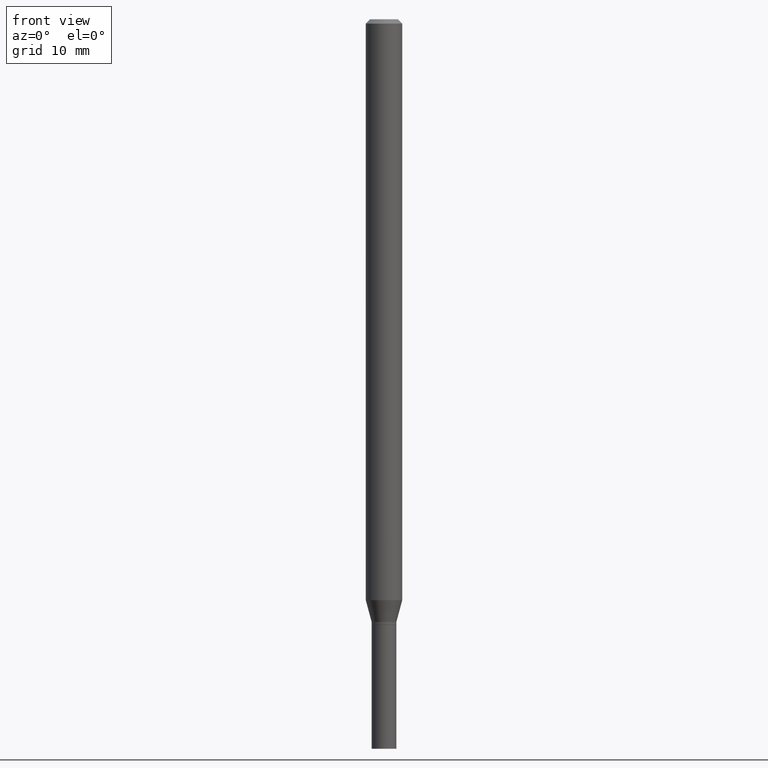
[diagram: clean part render]
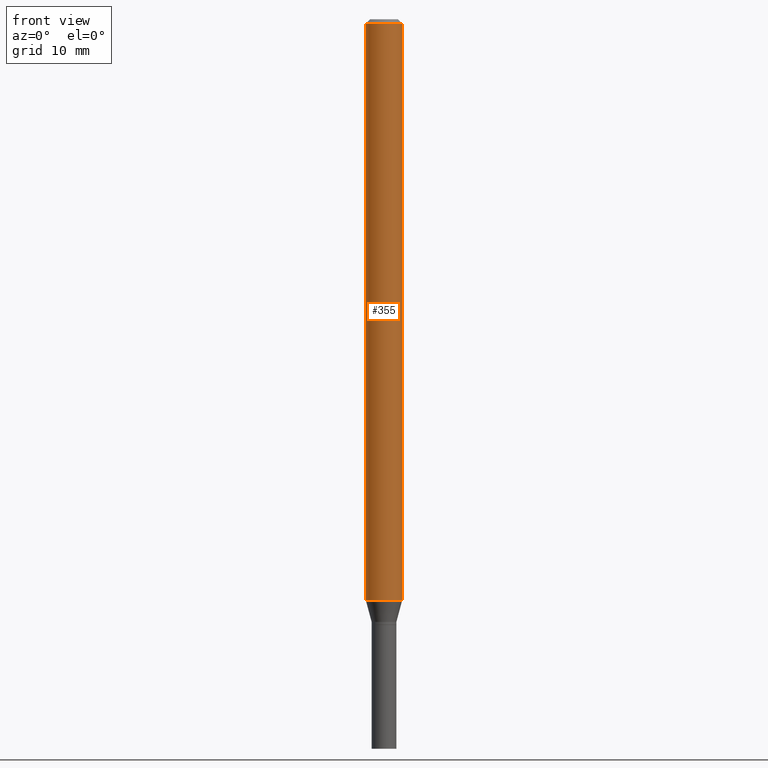
[diagram: same view with one face highlighted and labeled with its STEP entity id]
A machine part, front view. The second image highlights one B-rep face of the part: STEP entity #355.
In plain terms, the highlighted cylindrical surface (edge-blend (fillet) strip) has radius 1.5875 mm, axis along (-0, 0, 1).
Its self-contained STEP definition (entity closure, byte-faithful):
#7 = CIRCLE ( 'NONE', #415, 0.06250000000000000000 ) ;
#9 = CARTESIAN_POINT ( 'NONE',  ( 4.867360808112149424E-29, -6.949301249706266959E-15, -1.990358983848621310 ) ) ;
#27 = ORIENTED_EDGE ( 'NONE', *, *, #74, .T. ) ;
#28 = DIRECTION ( 'NONE',  ( 1.000000000000000000, -6.982962677686266711E-15, 0.000000000000000000 ) ) ;
#29 = DIRECTION ( 'NONE',  ( -2.445468806185136597E-29, 3.491481338843145583E-15, 1.000000000000000000 ) ) ;
#34 = ORIENTED_EDGE ( 'NONE', *, *, #389, .F. ) ;
#36 = CARTESIAN_POINT ( 'NONE',  ( 0.06250000000000000000, -4.888073874380388472E-16, -0.01499999999999999944 ) ) ;
#50 = EDGE_CURVE ( 'NONE', #446, #260, #7, .T. ) ;
#53 = AXIS2_PLACEMENT_3D ( 'NONE', #9, #318, #254 ) ;
#62 = DIRECTION ( 'NONE',  ( -2.445468806185136877E-29, 3.491481338843145188E-15, 1.000000000000000000 ) ) ;
#70 = CARTESIAN_POINT ( 'NONE',  ( 0.06250000000000000000, -4.364351673553916694E-16, 3.047610484872459871E-30 ) ) ;
#74 = EDGE_CURVE ( 'NONE', #245, #260, #242, .T. ) ;
#91 = DIRECTION ( 'NONE',  ( -2.445468806185136877E-29, 3.491481338843145188E-15, 1.000000000000000000 ) ) ;
#93 = VECTOR ( 'NONE', #91, 39.37007874015748143 ) ;
#127 = CARTESIAN_POINT ( 'NONE',  ( -0.06250000000000000000, 4.440892098500626162E-16, -3.074334431409316114E-30 ) ) ;
#152 = CYLINDRICAL_SURFACE ( 'NONE', #259, 0.06250000000000000000 ) ;
#153 = CARTESIAN_POINT ( 'NONE',  ( 0.06250000000000000000, -7.385736417061658629E-15, -1.990358983848621310 ) ) ;
#157 = CARTESIAN_POINT ( 'NONE',  ( 0.000000000000000000, 0.000000000000000000, 0.000000000000000000 ) ) ;
#170 = CARTESIAN_POINT ( 'NONE',  ( 3.668203209277705088E-31, -5.237222008264718399E-17, -0.01499999999999999944 ) ) ;
#179 = EDGE_CURVE ( 'NONE', #393, #245, #196, .T. ) ;
#196 = CIRCLE ( 'NONE', #53, 0.06250000000000000000 ) ;
#209 = EDGE_LOOP ( 'NONE', ( #34, #294, #27, #348 ) ) ;
#221 = CARTESIAN_POINT ( 'NONE',  ( -0.06250000000000000000, -3.056747525044394995E-15, -0.01499999999999999944 ) ) ;
#242 = LINE ( 'NONE', #70, #346 ) ;
#245 = VERTEX_POINT ( 'NONE', #153 ) ;
#254 = DIRECTION ( 'NONE',  ( 1.000000000000000000, -6.982962677686262766E-15, 0.000000000000000000 ) ) ;
#256 = DIRECTION ( 'NONE',  ( -2.445468806185136597E-29, 3.491481338843145583E-15, 1.000000000000000000 ) ) ;
#259 = AXIS2_PLACEMENT_3D ( 'NONE', #157, #256, #297 ) ;
#260 = VERTEX_POINT ( 'NONE', #36 ) ;
#294 = ORIENTED_EDGE ( 'NONE', *, *, #179, .T. ) ;
#297 = DIRECTION ( 'NONE',  ( 1.000000000000000000, -6.982962677686266711E-15, 4.876176775795935793E-29 ) ) ;
#307 = LINE ( 'NONE', #127, #93 ) ;
#318 = DIRECTION ( 'NONE',  ( -2.445468806185136597E-29, 3.491481338843145583E-15, 1.000000000000000000 ) ) ;
#346 = VECTOR ( 'NONE', #62, 39.37007874015748143 ) ;
#348 = ORIENTED_EDGE ( 'NONE', *, *, #50, .F. ) ;
#351 = CARTESIAN_POINT ( 'NONE',  ( -0.06250000000000000000, -6.505212039856205132E-15, -1.990358983848621310 ) ) ;
#355 = ADVANCED_FACE ( 'NONE', ( #374 ), #152, .T. ) ;
#374 = FACE_OUTER_BOUND ( 'NONE', #209, .T. ) ;
#389 = EDGE_CURVE ( 'NONE', #393, #446, #307, .T. ) ;
#393 = VERTEX_POINT ( 'NONE', #351 ) ;
#415 = AXIS2_PLACEMENT_3D ( 'NONE', #170, #29, #28 ) ;
#446 = VERTEX_POINT ( 'NONE', #221 ) ;